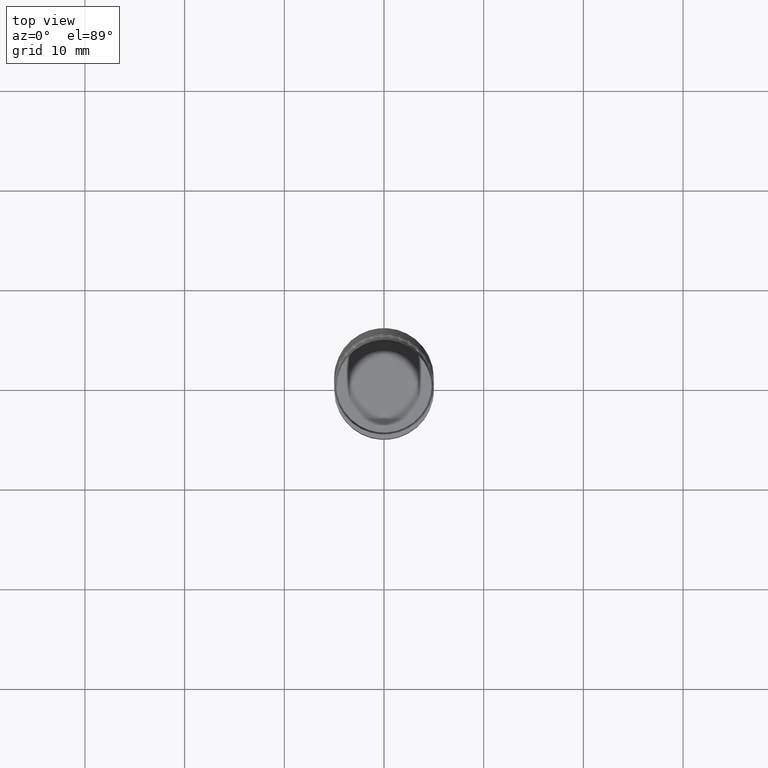
[diagram: clean part render]
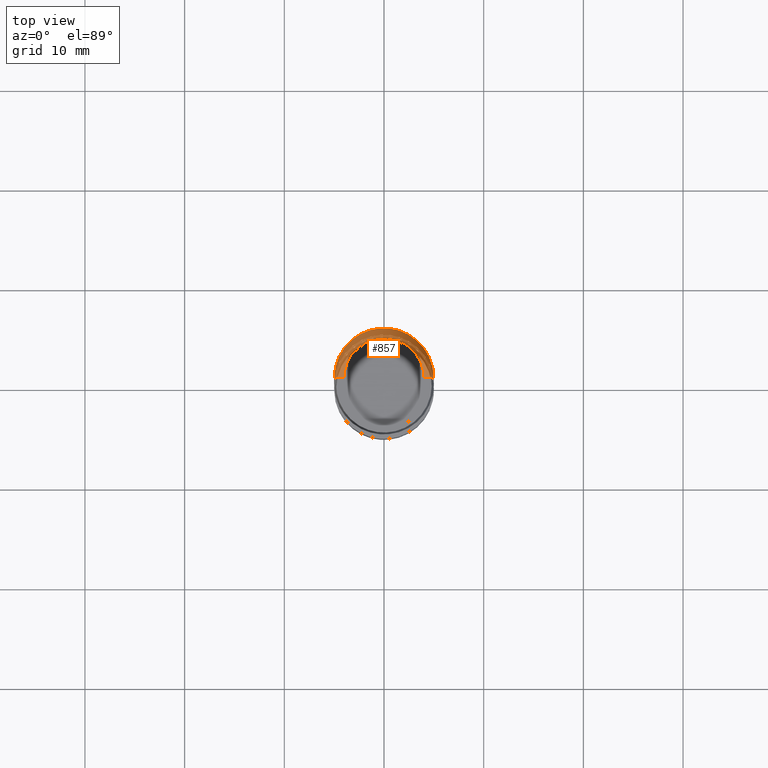
[diagram: same view with one face highlighted and labeled with its STEP entity id]
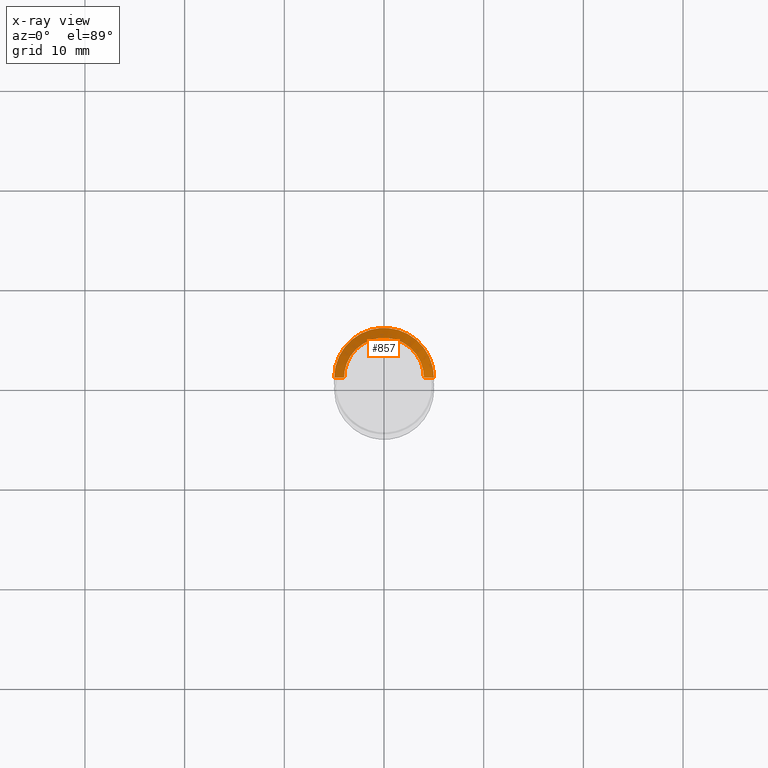
[diagram: x-ray of the same camera — body ghosted, the highlighted face saturated]
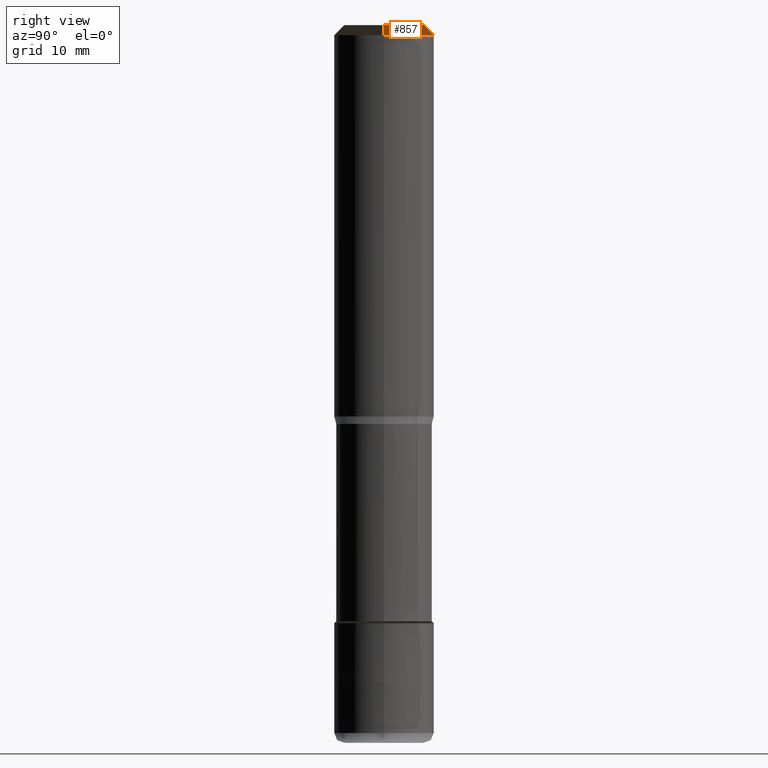
[diagram: same view with one face highlighted and labeled with its STEP entity id]
A machine part, top view. The second image highlights one B-rep face of the part: STEP entity #857.
The next image is the same camera in x-ray: the body ghosted, the highlighted face saturated — about 0% of this face is hidden behind the body in this view.
A second angle (right view) of the same face is appended — the face is thin or edge-on in the first view.
In plain terms, the highlighted face is a freeform B-spline surface patch.
Its self-contained STEP definition (entity closure, byte-faithful):
#538=CARTESIAN_POINT('',(5.0,0.0,38.253589838486));
#539=CARTESIAN_POINT('',(5.0,5.0,38.253589838486));
#540=CARTESIAN_POINT('',(0.0,5.0,38.253589838486));
#541=CARTESIAN_POINT('',(-5.0,5.0,38.253589838486));
#542=CARTESIAN_POINT('',(-5.0,0.0,38.253589838486));
#543=CARTESIAN_POINT('',(4.0,0.0,39.253589838486));
#544=CARTESIAN_POINT('',(4.0,4.0,39.253589838486));
#545=CARTESIAN_POINT('',(0.0,4.0,39.253589838486));
#546=CARTESIAN_POINT('',(-4.0,4.0,39.253589838486));
#547=CARTESIAN_POINT('',(-4.0,0.0,39.253589838486));
#838=(
BOUNDED_SURFACE()
B_SPLINE_SURFACE(1,2,(
(#538,#539,#540,#541,#542),
(#543,#544,#545,#546,#547)
), .UNSPECIFIED.,.F.,.F.,.F.)
B_SPLINE_SURFACE_WITH_KNOTS((2,2),(3,2,3),(
0.0,1.0),(
0.0,0.5,1.0), .UNSPECIFIED.)
GEOMETRIC_REPRESENTATION_ITEM()
RATIONAL_B_SPLINE_SURFACE(((1.0,0.707106781187,1.0,0.707106781187,1.0),
(1.0,0.707106781187,1.0,0.707106781187,1.0)
))
REPRESENTATION_ITEM('')
SURFACE()
);
#839=(
BOUNDED_CURVE()
B_SPLINE_CURVE(2,(#542,#541,#540,#539,#538),.UNSPECIFIED.,.F.,.F.)
B_SPLINE_CURVE_WITH_KNOTS((3,2,3),
(0.0,0.5,1.0),.UNSPECIFIED.)
CURVE()
GEOMETRIC_REPRESENTATION_ITEM()
RATIONAL_B_SPLINE_CURVE((1.0,0.707106781187,1.0,0.707106781187,1.0))
REPRESENTATION_ITEM('')
);
#840=(
BOUNDED_CURVE()
B_SPLINE_CURVE(1,(#538,#543),.UNSPECIFIED.,.F.,.F.)
B_SPLINE_CURVE_WITH_KNOTS((2,2),
(0.0,1.0),.UNSPECIFIED.)
CURVE()
GEOMETRIC_REPRESENTATION_ITEM()
RATIONAL_B_SPLINE_CURVE((1.0,1.0))
REPRESENTATION_ITEM('')
);
#841=(
BOUNDED_CURVE()
B_SPLINE_CURVE(2,(#543,#544,#545,#546,#547),.UNSPECIFIED.,.F.,.F.)
B_SPLINE_CURVE_WITH_KNOTS((3,2,3),
(0.0,0.5,1.0),.UNSPECIFIED.)
CURVE()
GEOMETRIC_REPRESENTATION_ITEM()
RATIONAL_B_SPLINE_CURVE((1.0,0.707106781187,1.0,0.707106781187,1.0))
REPRESENTATION_ITEM('')
);
#842=(
BOUNDED_CURVE()
B_SPLINE_CURVE(1,(#547,#542),.UNSPECIFIED.,.F.,.F.)
B_SPLINE_CURVE_WITH_KNOTS((2,2),
(0.0,1.0),.UNSPECIFIED.)
CURVE()
GEOMETRIC_REPRESENTATION_ITEM()
RATIONAL_B_SPLINE_CURVE((1.0,1.0))
REPRESENTATION_ITEM('')
);
#843=VERTEX_POINT('',#538);
#844=VERTEX_POINT('',#542);
#845=VERTEX_POINT('',#543);
#846=VERTEX_POINT('',#547);
#847=EDGE_CURVE('',#844,#843,#839,.T.);
#848=EDGE_CURVE('',#843,#845,#840,.T.);
#849=EDGE_CURVE('',#845,#846,#841,.T.);
#850=EDGE_CURVE('',#846,#844,#842,.T.);
#851=ORIENTED_EDGE('',*,*,#847,.T.);
#852=ORIENTED_EDGE('',*,*,#848,.T.);
#853=ORIENTED_EDGE('',*,*,#849,.T.);
#854=ORIENTED_EDGE('',*,*,#850,.T.);
#855=EDGE_LOOP('',(#851,#852,#853,#854));
#856=FACE_OUTER_BOUND('',#855,.T.);
#857=ADVANCED_FACE('',(#856),#838,.T.);